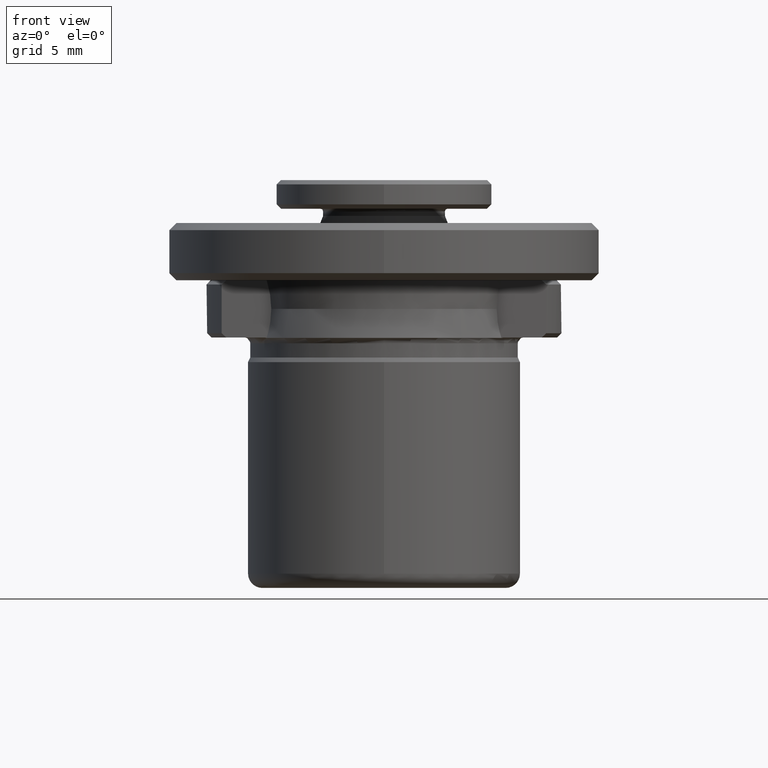
[diagram: clean part render]
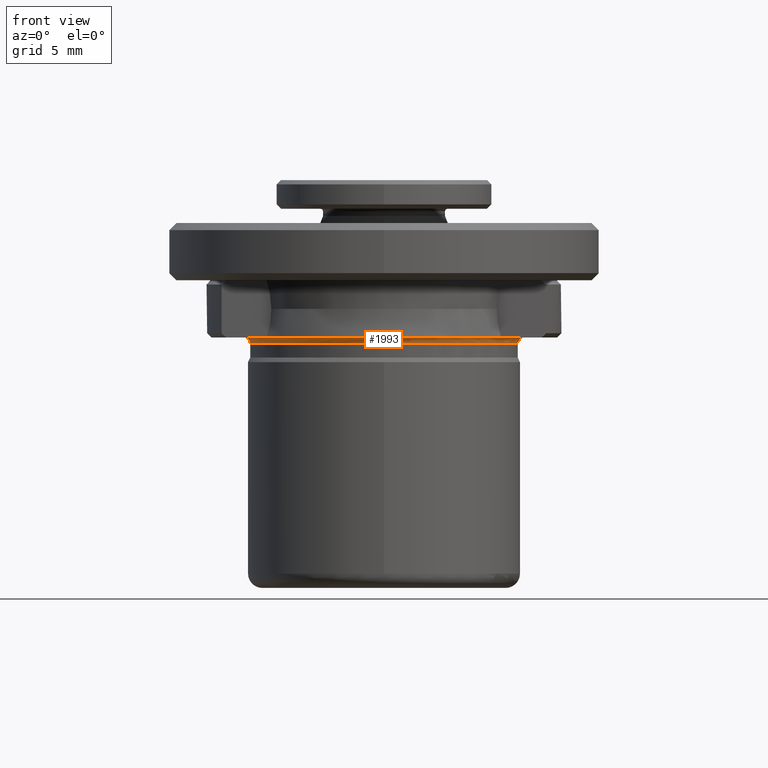
[diagram: same view with one face highlighted and labeled with its STEP entity id]
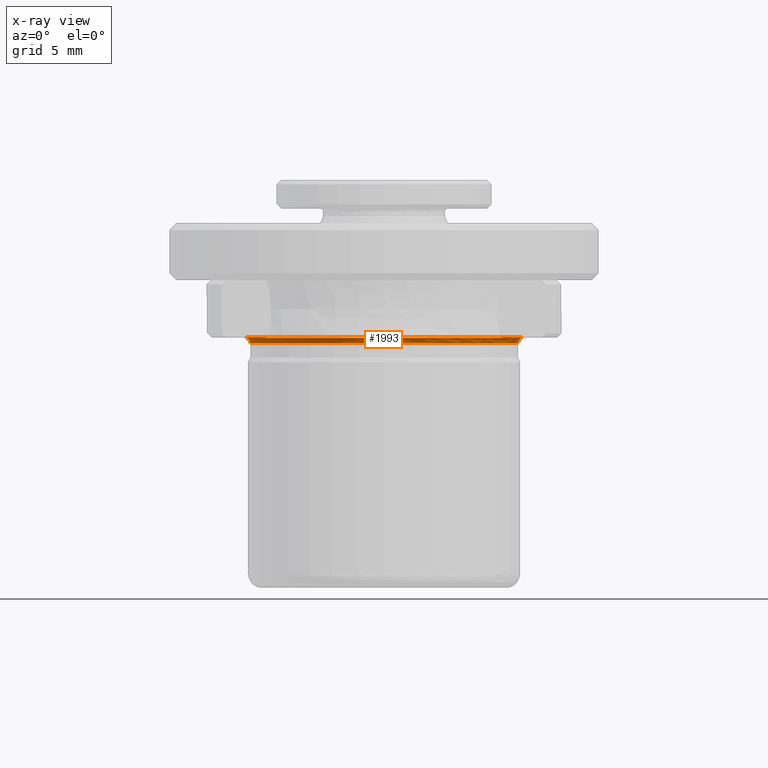
[diagram: x-ray of the same camera — body ghosted, the highlighted face saturated]
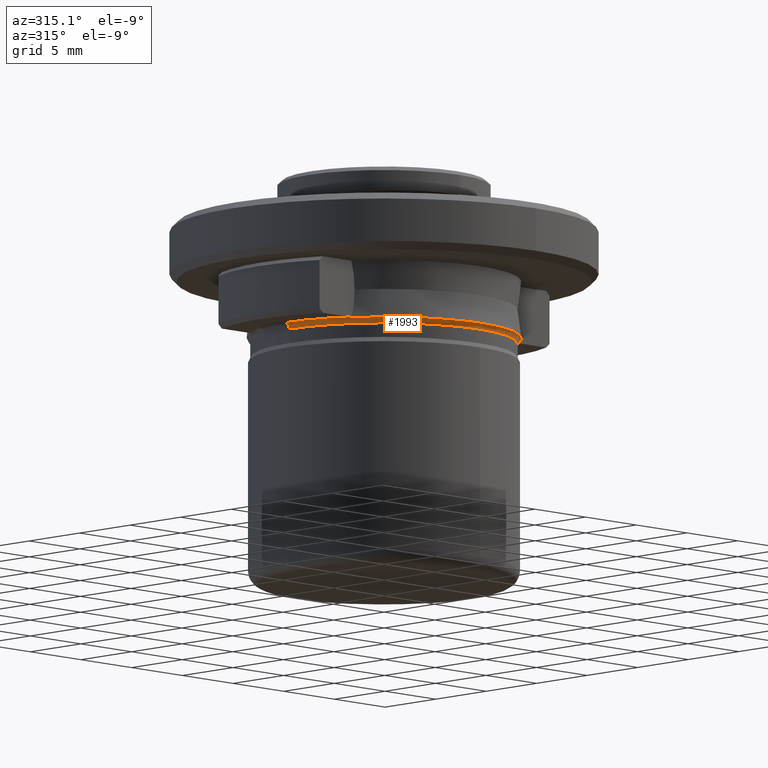
[diagram: same view with one face highlighted and labeled with its STEP entity id]
A machine part, front view. The second image highlights one B-rep face of the part: STEP entity #1993.
The next image is the same camera in x-ray: the body ghosted, the highlighted face saturated — about 0% of this face is hidden behind the body in this view.
A second angle (auxiliary view) of the same face is appended — the face is thin or edge-on in the first view.
In plain terms, the highlighted toroidal blend (fillet) surface has major radius 9.75 mm and minor (blend) radius 0.4 mm.
Its self-contained STEP definition (entity closure, byte-faithful):
#41 = VERTEX_POINT ( 'NONE', #1468 ) ;
#71 = DIRECTION ( 'NONE',  ( -1.000000000000000000, 1.224646799147352200E-016, 0.0000000000000000000 ) ) ;
#147 = VERTEX_POINT ( 'NONE', #1575 ) ;
#174 = AXIS2_PLACEMENT_3D ( 'NONE', #1365, #328, #1535 ) ;
#221 = AXIS2_PLACEMENT_3D ( 'NONE', #1028, #2201, #1200 ) ;
#259 = EDGE_LOOP ( 'NONE', ( #2188, #1784, #1944, #362, #1386, #1004, #601, #920 ) ) ;
#316 = DIRECTION ( 'NONE',  ( -0.0000000000000000000, 0.0000000000000000000, 1.000000000000000000 ) ) ;
#324 = CARTESIAN_POINT ( 'NONE',  ( -8.370334521172623000, -4.999999999999999100, 4.749999999889213100 ) ) ;
#325 = VERTEX_POINT ( 'NONE', #1210 ) ;
#328 = DIRECTION ( 'NONE',  ( -0.0000000000000000000, 1.231706655199673800E-016, -1.000000000000000000 ) ) ;
#343 = B_SPLINE_CURVE_WITH_KNOTS ( 'NONE', 3,
 ( #2181, #1839, #1013, #2190 ),
 .UNSPECIFIED., .F., .F.,
 ( 4, 4 ),
 ( 0.0000000000000000000, 0.0001669516248584918300 ),
 .UNSPECIFIED. ) ;
#362 = ORIENTED_EDGE ( 'NONE', *, *, #1415, .F. ) ;
#415 = VERTEX_POINT ( 'NONE', #1086 ) ;
#521 = AXIS2_PLACEMENT_3D ( 'NONE', #1043, #2221, #1215 ) ;
#541 = CARTESIAN_POINT ( 'NONE',  ( 9.350000000108330800, 0.0000000000000000000, 4.349999999879580400 ) ) ;
#591 = CIRCLE ( 'NONE', #174, 9.608762132945692300 ) ;
#601 = ORIENTED_EDGE ( 'NONE', *, *, #2195, .T. ) ;
#602 = CARTESIAN_POINT ( 'NONE',  ( -9.750000000561367800, 1.194030629237417500E-015, 4.749999999889213100 ) ) ;
#680 = CARTESIAN_POINT ( 'NONE',  ( -8.259008783760565500, -5.000000000000000000, 4.741517755019041900 ) ) ;
#770 = TOROIDAL_SURFACE ( 'NONE', #1376, 9.750000000326270600, 0.4000000002154814300 ) ;
#805 = VERTEX_POINT ( 'NONE', #1695 ) ;
#893 = VERTEX_POINT ( 'NONE', #541 ) ;
#897 = B_SPLINE_CURVE_WITH_KNOTS ( 'NONE', 3,
 ( #324, #1701, #680, #1873 ),
 .UNSPECIFIED., .F., .F.,
 ( 4, 4 ),
 ( 0.0000000000000000000, 0.0001669516248611322700 ),
 .UNSPECIFIED. ) ;
#920 = ORIENTED_EDGE ( 'NONE', *, *, #1681, .F. ) ;
#934 = CIRCLE ( 'NONE', #1161, 0.4000000002154814300 ) ;
#952 = CARTESIAN_POINT ( 'NONE',  ( 0.0000000000000000000, 0.0000000000000000000, 4.349999999673730900 ) ) ;
#961 = CIRCLE ( 'NONE', #2105, 9.750000000146760800 ) ;
#1004 = ORIENTED_EDGE ( 'NONE', *, *, #1361, .T. ) ;
#1013 = CARTESIAN_POINT ( 'NONE',  ( 8.259008783759654200, -5.000000000000000000, 4.741517755018747900 ) ) ;
#1020 = CARTESIAN_POINT ( 'NONE',  ( 0.0000000000000000000, 0.0000000000000000000, 4.349999999879580400 ) ) ;
#1028 = CARTESIAN_POINT ( 'NONE',  ( 9.750000000326270600, 0.0000000000000000000, 4.349999999673730900 ) ) ;
#1043 = CARTESIAN_POINT ( 'NONE',  ( 0.0000000000000000000, 0.0000000000000000000, 4.749999999889213100 ) ) ;
#1086 = CARTESIAN_POINT ( 'NONE',  ( -9.350000000108330800, 1.145044757216041900E-015, 4.349999999879580400 ) ) ;
#1121 = DIRECTION ( 'NONE',  ( 1.224646799147353200E-016, 1.000000000000000000, 0.0000000000000000000 ) ) ;
#1161 = AXIS2_PLACEMENT_3D ( 'NONE', #2122, #1121, #71 ) ;
#1186 = VERTEX_POINT ( 'NONE', #602 ) ;
#1192 = DIRECTION ( 'NONE',  ( -1.000000000000000000, 0.0000000000000000000, 0.0000000000000000000 ) ) ;
#1200 = DIRECTION ( 'NONE',  ( 0.0000000000000000000, 0.0000000000000000000, -1.000000000000000000 ) ) ;
#1203 = CIRCLE ( 'NONE', #521, 9.750000000796468700 ) ;
#1210 = CARTESIAN_POINT ( 'NONE',  ( -8.370334521172623000, -4.999999999999999100, 4.749999999889213100 ) ) ;
#1215 = DIRECTION ( 'NONE',  ( 1.000000000000000000, 1.776356839400250500E-015, 0.0000000000000000000 ) ) ;
#1355 = CIRCLE ( 'NONE', #221, 0.4000000002154814300 ) ;
#1356 = CARTESIAN_POINT ( 'NONE',  ( 0.0000000000000000000, 0.0000000000000000000, 4.749999999889213100 ) ) ;
#1361 = EDGE_CURVE ( 'NONE', #805, #147, #343, .T. ) ;
#1365 = CARTESIAN_POINT ( 'NONE',  ( -3.469446951953614200E-015, 1.203104456337644700E-010, 4.724235040888958200 ) ) ;
#1376 = AXIS2_PLACEMENT_3D ( 'NONE', #952, #1954, #2131 ) ;
#1386 = ORIENTED_EDGE ( 'NONE', *, *, #1399, .F. ) ;
#1399 = EDGE_CURVE ( 'NONE', #805, #1835, #961, .T. ) ;
#1402 = CARTESIAN_POINT ( 'NONE',  ( 9.750000000236514800, 0.0000000000000000000, 4.749999999889213100 ) ) ;
#1415 = EDGE_CURVE ( 'NONE', #1835, #893, #1355, .T. ) ;
#1468 = CARTESIAN_POINT ( 'NONE',  ( -8.205382973924146800, -5.000000000000000900, 4.724235040594156700 ) ) ;
#1524 = DIRECTION ( 'NONE',  ( 1.000000000000000000, 0.0000000000000000000, 0.0000000000000000000 ) ) ;
#1535 = DIRECTION ( 'NONE',  ( 0.0000000000000000000, 1.000000000000000000, 9.026779162473682500E-017 ) ) ;
#1563 = CIRCLE ( 'NONE', #2062, 9.350000000108330800 ) ;
#1575 = CARTESIAN_POINT ( 'NONE',  ( 8.205382973924143300, -5.000000000000000900, 4.724235040594156700 ) ) ;
#1681 = EDGE_CURVE ( 'NONE', #325, #41, #897, .T. ) ;
#1695 = CARTESIAN_POINT ( 'NONE',  ( 8.370334520555237700, -5.000000000000000000, 4.749999999889213100 ) ) ;
#1701 = CARTESIAN_POINT ( 'NONE',  ( -8.314009200589170600, -5.000000001018015900, 4.749999998703816400 ) ) ;
#1712 = EDGE_CURVE ( 'NONE', #325, #1186, #1203, .T. ) ;
#1784 = ORIENTED_EDGE ( 'NONE', *, *, #1963, .T. ) ;
#1835 = VERTEX_POINT ( 'NONE', #1402 ) ;
#1839 = CARTESIAN_POINT ( 'NONE',  ( 8.314009200587245000, -5.000000001017176600, 4.749999998704311100 ) ) ;
#1873 = CARTESIAN_POINT ( 'NONE',  ( -8.205382973924146800, -5.000000000000000900, 4.724235040594156700 ) ) ;
#1944 = ORIENTED_EDGE ( 'NONE', *, *, #2113, .F. ) ;
#1954 = DIRECTION ( 'NONE',  ( -0.0000000000000000000, 0.0000000000000000000, 1.000000000000000000 ) ) ;
#1963 = EDGE_CURVE ( 'NONE', #1186, #415, #934, .T. ) ;
#1993 = ADVANCED_FACE ( 'NONE', ( #2169 ), #770, .F. ) ;
#2062 = AXIS2_PLACEMENT_3D ( 'NONE', #1020, #2193, #1192 ) ;
#2105 = AXIS2_PLACEMENT_3D ( 'NONE', #1356, #316, #1524 ) ;
#2113 = EDGE_CURVE ( 'NONE', #893, #415, #1563, .T. ) ;
#2122 = CARTESIAN_POINT ( 'NONE',  ( -9.750000000326270600, 1.194030629208625900E-015, 4.349999999673730900 ) ) ;
#2131 = DIRECTION ( 'NONE',  ( 1.000000000000000000, 0.0000000000000000000, 0.0000000000000000000 ) ) ;
#2169 = FACE_OUTER_BOUND ( 'NONE', #259, .T. ) ;
#2181 = CARTESIAN_POINT ( 'NONE',  ( 8.370334520555237700, -5.000000000000000000, 4.749999999889213100 ) ) ;
#2188 = ORIENTED_EDGE ( 'NONE', *, *, #1712, .T. ) ;
#2190 = CARTESIAN_POINT ( 'NONE',  ( 8.205382973924143300, -5.000000000000000900, 4.724235040594156700 ) ) ;
#2193 = DIRECTION ( 'NONE',  ( 0.0000000000000000000, -0.0000000000000000000, -1.000000000000000000 ) ) ;
#2195 = EDGE_CURVE ( 'NONE', #147, #41, #591, .T. ) ;
#2201 = DIRECTION ( 'NONE',  ( 0.0000000000000000000, -1.000000000000000000, 0.0000000000000000000 ) ) ;
#2221 = DIRECTION ( 'NONE',  ( -0.0000000000000000000, 0.0000000000000000000, -1.000000000000000000 ) ) ;